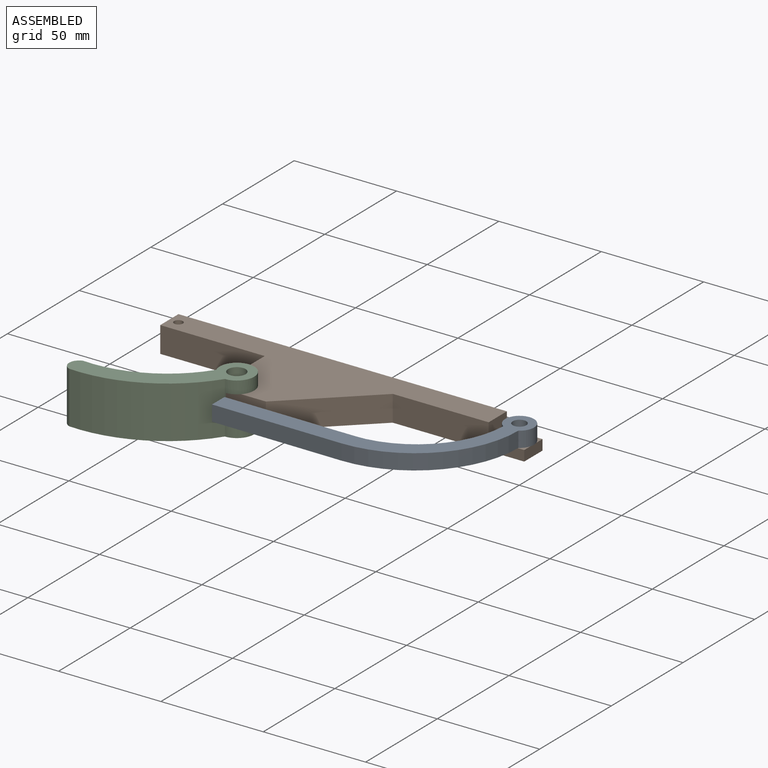
[diagram: assembled view]
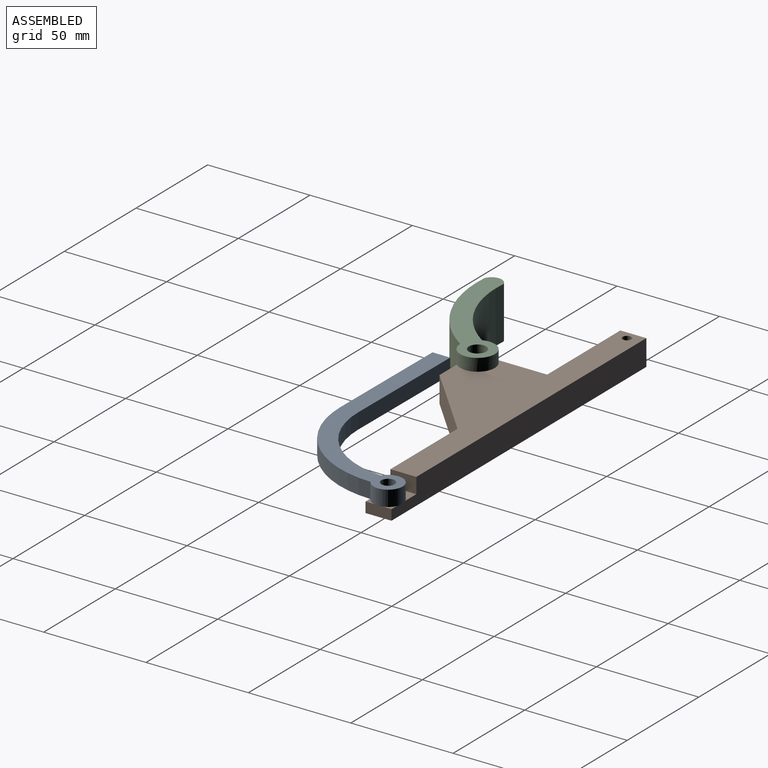
[diagram: assembled view, second angle]
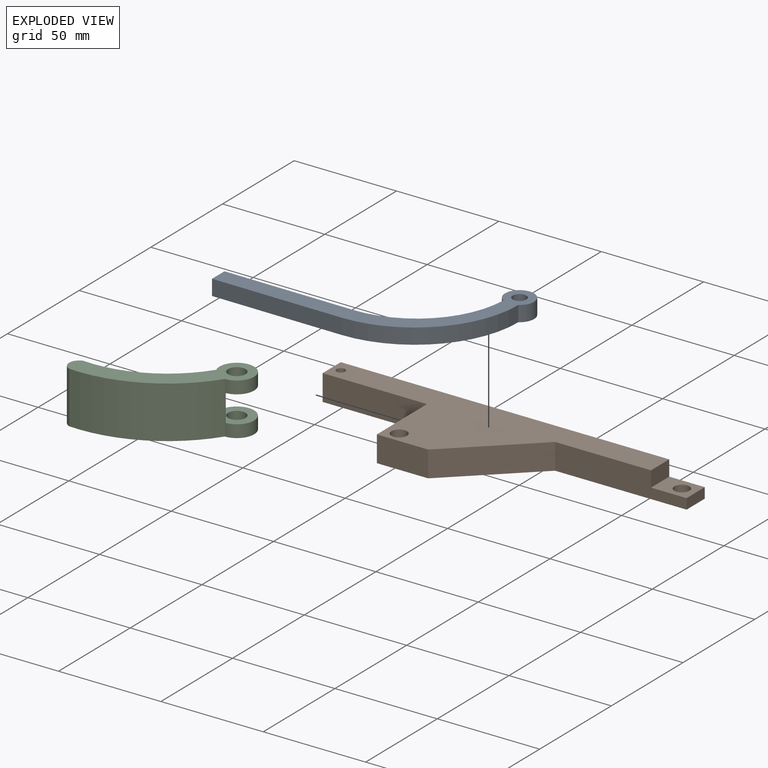
[diagram: exploded view]
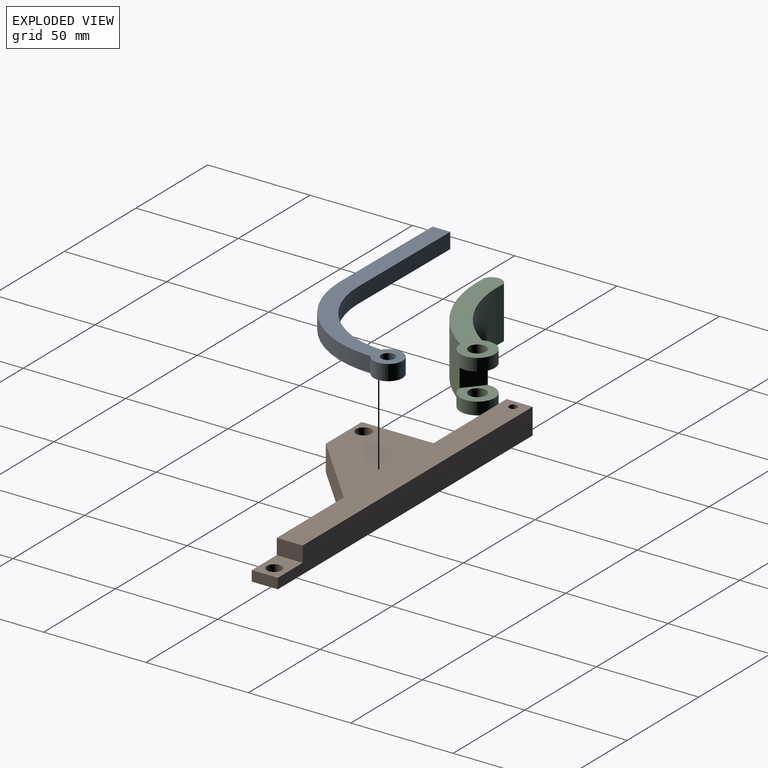
[diagram: exploded view, second angle]
ASSEMBLY  parts=3 mates=2
PART A: 9 faces, bbox 117.7x63.9x7.6 mm
  f0: plane 63.5x7.62mm, normal (0,-1,0), area 483.9mm2, adj f1,f6,f7,f8
  f1: cylinder r=50.8mm len=50.8mm, axis (0,0,-1), area 608mm2, adj f0,f2,f7,f8
  f2: cylinder r=7.06mm len=14.12mm, axis (0,0,-1), area 278.6mm2, adj f1,f3,f7,f8
  f3: cylinder r=43.42mm len=43.4mm, axis (0,0,-1), area 509.9mm2, adj f2,f4,f7,f8
  f4: plane 63.5x7.62mm, normal (0,1,0), area 483.9mm2, adj f3,f6,f7,f8
  f5: cylinder r=3.32mm len=7.62mm, axis (0,0,-1), area 158.8mm2, adj f7,f8
  f6: plane 8.67x7.62mm, normal (-1,0,0), area 66.1mm2, adj f0,f4,f7,f8
  f7: plane 117.66x63.87mm, normal (0,0,1), area 1269.4mm2, adj f0,f1,f2,f3,f4,f5,f6
  f8: plane 117.66x63.87mm, normal (0,0,-1), area 1269.4mm2, adj f0,f1,f2,f3,f4,f5,f6
PART B: 15 faces, bbox 177.8x47.7x12.7 mm
  f0: plane 12.7x7.62mm, normal (1,0,0), area 96.8mm2, adj f1,f7,f10,f14
  f1: plane 177.8x12.7mm, normal (0,1,0), area 2125.7mm2, adj f0,f2,f10,f11,f12,f14
  f2: plane 12.7x12.7mm, normal (-1,0,0), area 161.3mm2, adj f1,f3,f10,f11
  f3: plane 51.05x12.7mm, normal (0,-1,0), area 648.3mm2, adj f2,f4,f10,f11
  f4: plane 35.05x12.7mm, normal (-1,0,0), area 445.1mm2, adj f3,f5,f10,f11
  f5: plane 25.07x12.7mm, normal (0,-1,0), area 318.3mm2, adj f4,f6,f10,f11
  f6: plane 37.47x35.05mm, normal (0.68,-0.73,0), area 651.6mm2, adj f5,f7,f10,f11
  f7: plane 64.21x12.7mm, normal (0,-1,0), area 683.1mm2, adj f0,f6,f10,f11,f12,f14
  f8: cylinder r=2.11mm len=12.7mm, axis (0,0,-1), area 168.1mm2, adj f10,f11
  f9: cylinder r=3.8mm len=12.7mm, axis (0,0,-1), area 303.1mm2, adj f10,f11
  f10: plane 160.43x47.75mm, normal (0,0,1), area 3513.4mm2, adj f0,f1,f2,f3,f4,f5,f6,f7
  f11: plane 177.8x47.75mm, normal (0,0,-1), area 3691.4mm2, adj f1,f2,f3,f4,f5,f6,f7,f8
  f12: plane 12.7x5.08mm, normal (1,0,0), area 64.5mm2, adj f1,f7,f11,f14
  f13: cylinder r=3.68mm len=7.36mm, axis (0,0,-1), area 117.5mm2, adj f11,f14
  f14: plane 17.37x12.7mm, normal (0,0,1), area 178.1mm2, adj f0,f1,f7,f12,f13
PART C: 11 faces, bbox 34.9x72.9x25.4 mm
  f0: cylinder r=4.27mm len=8.54mm, axis (0,0,-1), area 163.6mm2, adj f7,f9
  f1: cylinder r=62.25mm len=57.73mm, axis (0,0,-1), area 1676.7mm2, adj f2,f5,f6,f7
  f2: cylinder r=8.45mm len=25.4mm, axis (0,0,-1), area 564.4mm2, adj f1,f3,f6,f7,f8,f9,f10
  f3: cylinder r=52.85mm len=49.38mm, axis (0,0,-1), area 1439.8mm2, adj f2,f5,f6,f7
  f4: cylinder r=4.27mm len=8.54mm, axis (0,0,-1), area 163.6mm2, adj f6,f10
  f5: cylinder r=4.96mm len=25.4mm, axis (0,0,-1), area 315.4mm2, adj f1,f3,f6,f7
  f6: plane 72.95x34.88mm, normal (0,0,1), area 758.1mm2, adj f1,f2,f3,f4,f5
  f7: plane 72.95x34.88mm, normal (0,0,-1), area 758.1mm2, adj f0,f1,f2,f3,f5
  f8: plane 13.21x11.66mm, normal (0,1,0), area 154mm2, adj f2,f9,f10
  f9: plane 16.91x14.57mm, normal (0,0,1), area 148.5mm2, adj f0,f2,f8
  f10: plane 16.91x14.57mm, normal (0,0,-1), area 148.5mm2, adj f2,f4,f8
PLACE A rot(axis=(0,0,-1),0.4deg) t=(-3.63,2.49,-54.56)mm
PLACE B t=(-38.28,58.96,-59.64)mm fixed
PLACE C rot(axis=(0,0,-1),40.3deg) t=(-125.7,-3.43,-66.25)mm
MATE revolute C.f0 <-> B.f9  axis (0,0,-1) through (-69.3,23.38,-46.94)mm
MATE revolute B.f13 <-> A.f2  axis (0,0,1) through (43.88,58.96,-54.56)mm
